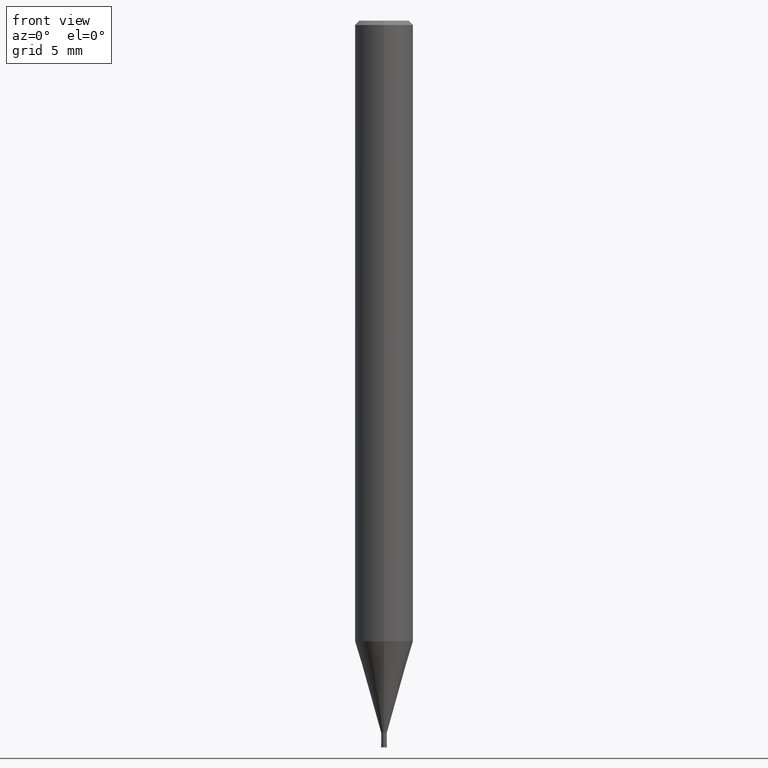
[diagram: clean part render]
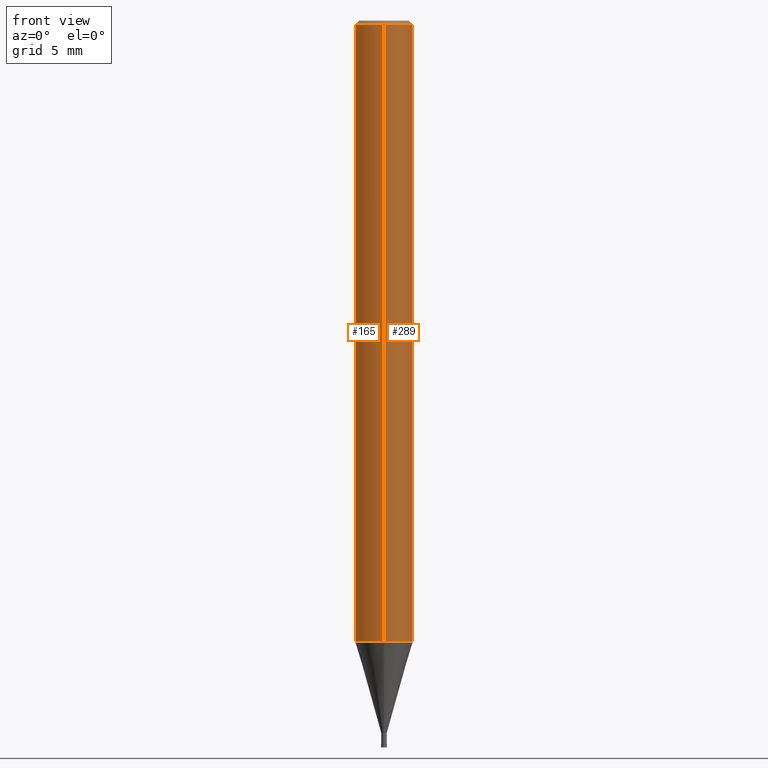
[diagram: same view with one multi-face feature highlighted, each face labeled with its STEP entity id]
A machine part, front view. The highlighted faces form ONE feature: a constant-radius fillet chain: 2 tangent blend faces with common blend radius 2 mm. The faces share edges in the B-rep.
Their STEP definitions:
[1] entity #165 (Cylinder):
#165=ADVANCED_FACE('',(#403),#404,.T.);
#197=VERTEX_POINT('',#442);
#255=VERTEX_POINT('',#507);
#299=EDGE_CURVE('',#255,#307,#557,.T.);
#307=VERTEX_POINT('',#566);
#309=EDGE_CURVE('',#307,#349,#568,.T.);
#329=EDGE_CURVE('',#197,#349,#589,.T.);
#337=EDGE_CURVE('',#197,#255,#598,.T.);
#349=VERTEX_POINT('',#612);
#403=FACE_OUTER_BOUND('',#667,.T.);
#404=CYLINDRICAL_SURFACE('',#668,2.0);
#442=CARTESIAN_POINT('',(2.44921270764475E-016,-2.0,-42.686));
#507=CARTESIAN_POINT('',(2.44921270764475E-016,-2.0,-0.289999999999999));
#557=CIRCLE('',#861,2.0);
#566=CARTESIAN_POINT('',(0.0,2.0,-0.289999999999999));
#568=LINE('',#876,#877);
#589=CIRCLE('',#903,2.0);
#598=LINE('',#916,#917);
#612=CARTESIAN_POINT('',(0.0,2.0,-42.686));
#667=EDGE_LOOP('',(#977,#978,#979,#980));
#668=AXIS2_PLACEMENT_3D('',#981,#982,#983);
#861=AXIS2_PLACEMENT_3D('',#1189,#1190,#1191);
#876=CARTESIAN_POINT('',(-2.44921270764475E-016,2.0,-21.488));
#877=VECTOR('',#1204,1.0);
#903=AXIS2_PLACEMENT_3D('',#1220,#1221,#1222);
#916=CARTESIAN_POINT('',(2.44921270764475E-016,-2.0,-21.488));
#917=VECTOR('',#1233,1.0);
#977=ORIENTED_EDGE('',*,*,#309,.T.);
#978=ORIENTED_EDGE('',*,*,#329,.F.);
#979=ORIENTED_EDGE('',*,*,#337,.T.);
#980=ORIENTED_EDGE('',*,*,#299,.T.);
#981=CARTESIAN_POINT('',(0.0,0.0,-21.488));
#982=DIRECTION('',(-0.0,-0.0,1.0));
#983=DIRECTION('',(0.0,1.0,0.0));
#1189=CARTESIAN_POINT('',(0.0,0.0,-0.289999999999999));
#1190=DIRECTION('',(0.0,0.0,-1.0));
#1191=DIRECTION('',(0.0,1.0,0.0));
#1204=DIRECTION('',(0.0,0.0,-1.0));
#1220=CARTESIAN_POINT('',(0.0,0.0,-42.686));
#1221=DIRECTION('',(0.0,0.0,-1.0));
#1222=DIRECTION('',(0.0,1.0,0.0));
#1233=DIRECTION('',(-0.0,-0.0,1.0));
[2] entity #289 (Cylinder):
#169=EDGE_CURVE('',#307,#255,#408,.T.);
#197=VERTEX_POINT('',#442);
#255=VERTEX_POINT('',#507);
#289=ADVANCED_FACE('',(#544),#545,.T.);
#307=VERTEX_POINT('',#566);
#309=EDGE_CURVE('',#307,#349,#568,.T.);
#311=EDGE_CURVE('',#349,#197,#570,.T.);
#337=EDGE_CURVE('',#197,#255,#598,.T.);
#349=VERTEX_POINT('',#612);
#408=CIRCLE('',#674,2.0);
#442=CARTESIAN_POINT('',(2.44921270764475E-016,-2.0,-42.686));
#507=CARTESIAN_POINT('',(2.44921270764475E-016,-2.0,-0.289999999999999));
#544=FACE_OUTER_BOUND('',#846,.T.);
#545=CYLINDRICAL_SURFACE('',#847,2.0);
#566=CARTESIAN_POINT('',(0.0,2.0,-0.289999999999999));
#568=LINE('',#876,#877);
#570=CIRCLE('',#880,2.0);
#598=LINE('',#916,#917);
#612=CARTESIAN_POINT('',(0.0,2.0,-42.686));
#674=AXIS2_PLACEMENT_3D('',#987,#988,#989);
#846=EDGE_LOOP('',(#1163,#1164,#1165,#1166));
#847=AXIS2_PLACEMENT_3D('',#1167,#1168,#1169);
#876=CARTESIAN_POINT('',(-2.44921270764475E-016,2.0,-21.488));
#877=VECTOR('',#1204,1.0);
#880=AXIS2_PLACEMENT_3D('',#1205,#1206,#1207);
#916=CARTESIAN_POINT('',(2.44921270764475E-016,-2.0,-21.488));
#917=VECTOR('',#1233,1.0);
#987=CARTESIAN_POINT('',(0.0,0.0,-0.289999999999999));
#988=DIRECTION('',(0.0,0.0,-1.0));
#989=DIRECTION('',(0.0,1.0,0.0));
#1163=ORIENTED_EDGE('',*,*,#309,.F.);
#1164=ORIENTED_EDGE('',*,*,#169,.T.);
#1165=ORIENTED_EDGE('',*,*,#337,.F.);
#1166=ORIENTED_EDGE('',*,*,#311,.F.);
#1167=CARTESIAN_POINT('',(0.0,0.0,-21.488));
#1168=DIRECTION('',(-0.0,-0.0,1.0));
#1169=DIRECTION('',(0.0,1.0,0.0));
#1204=DIRECTION('',(0.0,0.0,-1.0));
#1205=CARTESIAN_POINT('',(0.0,0.0,-42.686));
#1206=DIRECTION('',(0.0,0.0,-1.0));
#1207=DIRECTION('',(0.0,1.0,0.0));
#1233=DIRECTION('',(-0.0,-0.0,1.0));